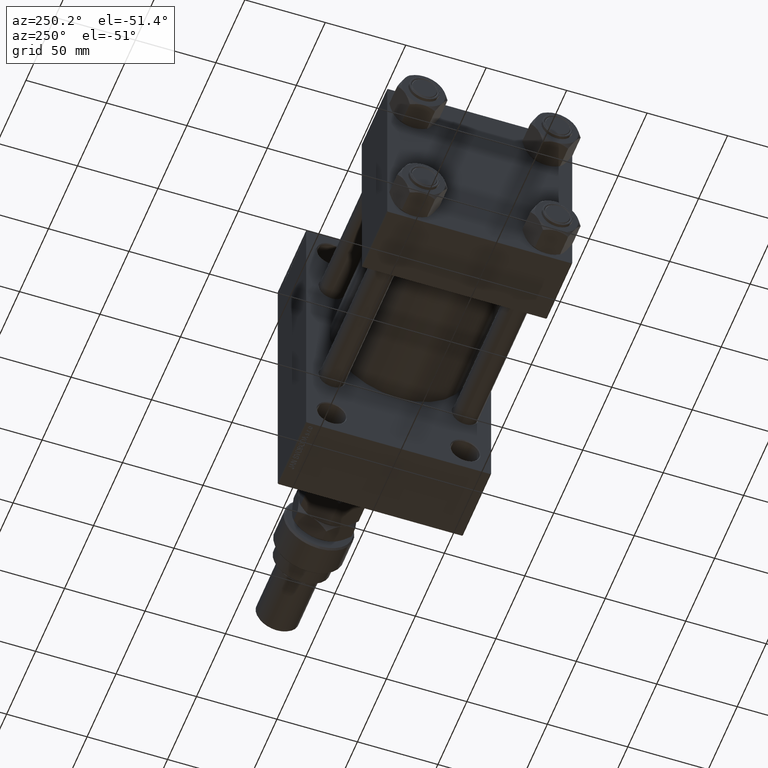
[diagram: clean part render]
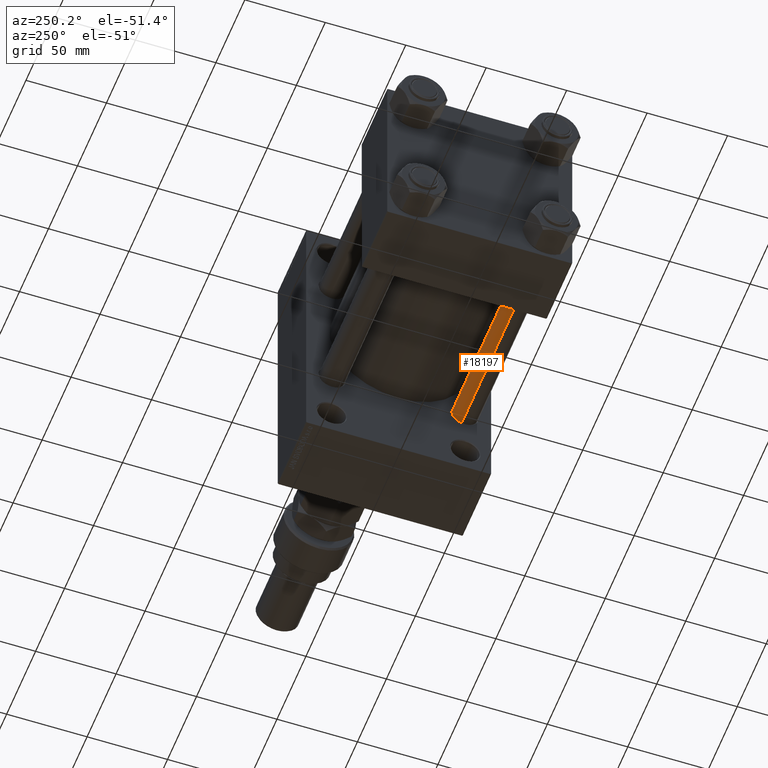
[diagram: same view with one face highlighted and labeled with its STEP entity id]
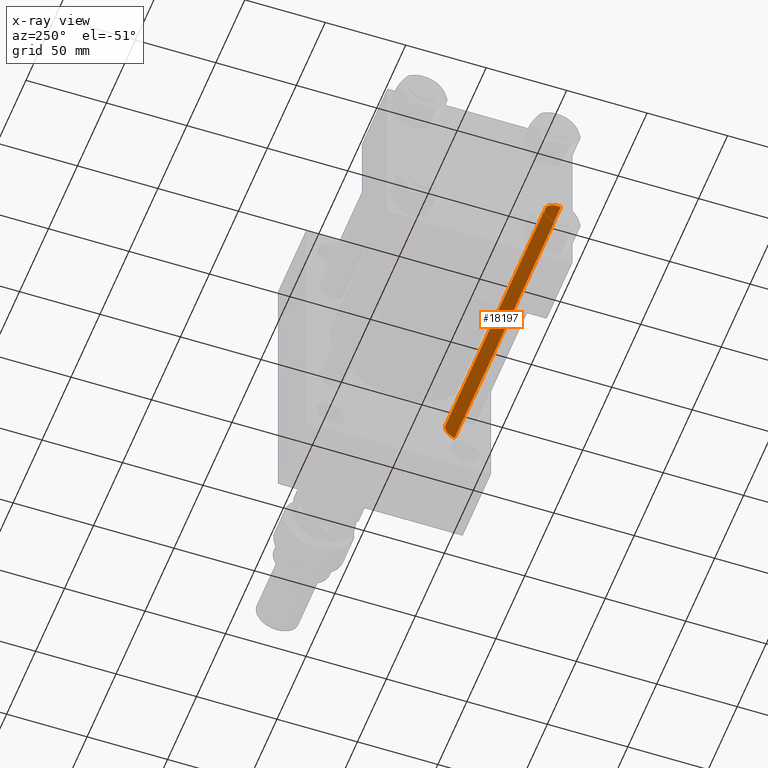
[diagram: x-ray of the same camera — body ghosted, the highlighted face saturated]
A machine part, auxiliary view. The second image highlights one B-rep face of the part: STEP entity #18197.
The next image is the same camera in x-ray: the body ghosted, the highlighted face saturated — about 0% of this face is hidden behind the body in this view.
In plain terms, the highlighted cylindrical surface (edge-blend (fillet) strip) has radius 8 mm, axis along (-1, 0, 0).
Its self-contained STEP definition (entity closure, byte-faithful):
#1606 = CARTESIAN_POINT ( 'NONE',  ( 8.000000000000000000, 9.797174393178825657E-16, 172.5000000000000000 ) ) ;
#1720 = DIRECTION ( 'NONE',  ( 1.000000000000000000, 0.000000000000000000, 0.000000000000000000 ) ) ;
#2104 = EDGE_CURVE ( 'NONE', #43745, #14968, #48422, .T. ) ;
#3431 = CARTESIAN_POINT ( 'NONE',  ( 0.000000000000000000, 0.000000000000000000, 173.0000000000000000 ) ) ;
#3682 = FACE_OUTER_BOUND ( 'NONE', #47921, .T. ) ;
#4012 = CARTESIAN_POINT ( 'NONE',  ( -8.000000000000000000, 0.000000000000000000, 0.4999999999999449329 ) ) ;
#5605 = ORIENTED_EDGE ( 'NONE', *, *, #48758, .T. ) ;
#5807 = CARTESIAN_POINT ( 'NONE',  ( 0.000000000000000000, 0.000000000000000000, 0.4999999999999449329 ) ) ;
#6645 = CARTESIAN_POINT ( 'NONE',  ( -8.000000000000000000, 0.000000000000000000, 172.5000000000000000 ) ) ;
#10236 = AXIS2_PLACEMENT_3D ( 'NONE', #3431, #46110, #11104 ) ;
#11104 = DIRECTION ( 'NONE',  ( -1.000000000000000000, 0.000000000000000000, 0.000000000000000000 ) ) ;
#12737 = DIRECTION ( 'NONE',  ( -0.000000000000000000, -0.000000000000000000, -1.000000000000000000 ) ) ;
#14968 = VERTEX_POINT ( 'NONE', #6645 ) ;
#15407 = VERTEX_POINT ( 'NONE', #4012 ) ;
#17217 = EDGE_CURVE ( 'NONE', #15407, #47379, #25718, .T. ) ;
#18197 = ADVANCED_FACE ( 'NONE', ( #3682 ), #30524, .T. ) ;
#18889 = CARTESIAN_POINT ( 'NONE',  ( 8.000000000000000000, 9.797174393178825657E-16, 173.0000000000000000 ) ) ;
#20632 = ORIENTED_EDGE ( 'NONE', *, *, #2104, .T. ) ;
#25718 = CIRCLE ( 'NONE', #33094, 8.000000000000000000 ) ;
#28015 = AXIS2_PLACEMENT_3D ( 'NONE', #47305, #43460, #42706 ) ;
#28309 = VECTOR ( 'NONE', #12737, 1000.000000000000000 ) ;
#28590 = CARTESIAN_POINT ( 'NONE',  ( -8.000000000000000000, 0.000000000000000000, 173.0000000000000000 ) ) ;
#30524 = CYLINDRICAL_SURFACE ( 'NONE', #10236, 8.000000000000000000 ) ;
#31880 = ORIENTED_EDGE ( 'NONE', *, *, #17217, .T. ) ;
#32644 = CARTESIAN_POINT ( 'NONE',  ( 8.000000000000000000, 9.797174393178825657E-16, 0.4999999999999449329 ) ) ;
#33094 = AXIS2_PLACEMENT_3D ( 'NONE', #5807, #44647, #1720 ) ;
#36491 = LINE ( 'NONE', #28590, #28309 ) ;
#42706 = DIRECTION ( 'NONE',  ( 1.000000000000000000, 0.000000000000000000, 0.000000000000000000 ) ) ;
#43460 = DIRECTION ( 'NONE',  ( 0.000000000000000000, 0.000000000000000000, -1.000000000000000000 ) ) ;
#43745 = VERTEX_POINT ( 'NONE', #1606 ) ;
#44647 = DIRECTION ( 'NONE',  ( -0.000000000000000000, -0.000000000000000000, 1.000000000000000000 ) ) ;
#45159 = EDGE_CURVE ( 'NONE', #43745, #47379, #46726, .T. ) ;
#46110 = DIRECTION ( 'NONE',  ( -0.000000000000000000, -0.000000000000000000, -1.000000000000000000 ) ) ;
#46474 = DIRECTION ( 'NONE',  ( -0.000000000000000000, -0.000000000000000000, -1.000000000000000000 ) ) ;
#46726 = LINE ( 'NONE', #18889, #50185 ) ;
#47280 = ORIENTED_EDGE ( 'NONE', *, *, #45159, .F. ) ;
#47305 = CARTESIAN_POINT ( 'NONE',  ( 0.000000000000000000, 0.000000000000000000, 172.5000000000000000 ) ) ;
#47379 = VERTEX_POINT ( 'NONE', #32644 ) ;
#47921 = EDGE_LOOP ( 'NONE', ( #47280, #20632, #5605, #31880 ) ) ;
#48422 = CIRCLE ( 'NONE', #28015, 8.000000000000000000 ) ;
#48758 = EDGE_CURVE ( 'NONE', #14968, #15407, #36491, .T. ) ;
#50185 = VECTOR ( 'NONE', #46474, 1000.000000000000000 ) ;